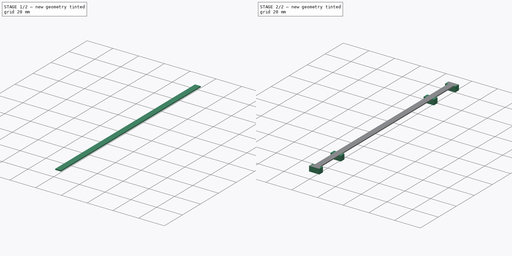
[diagram: build sequence overview — one tinted view per stage of 2, left to right]
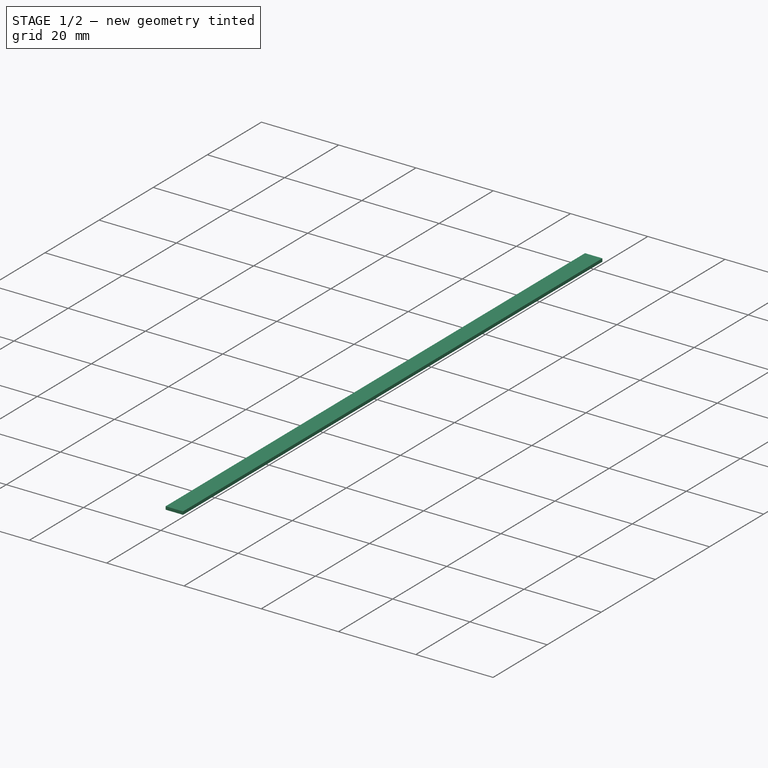
[diagram: stage 1 of 2 — iso view after this stage's code; geometry added in this stage tinted green]
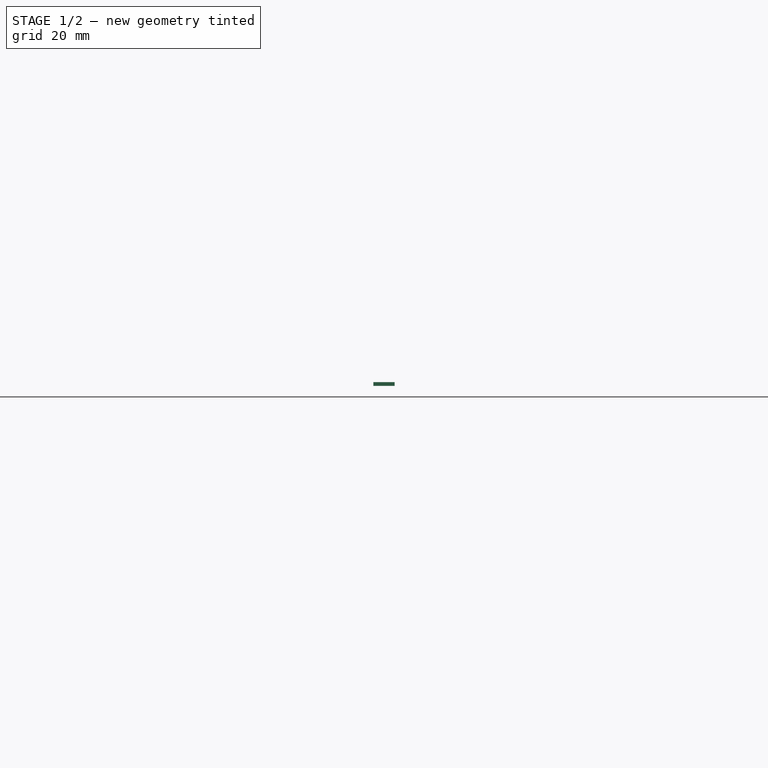
[diagram: stage 1 of 2 — front view after this stage's code; geometry added in this stage tinted green]
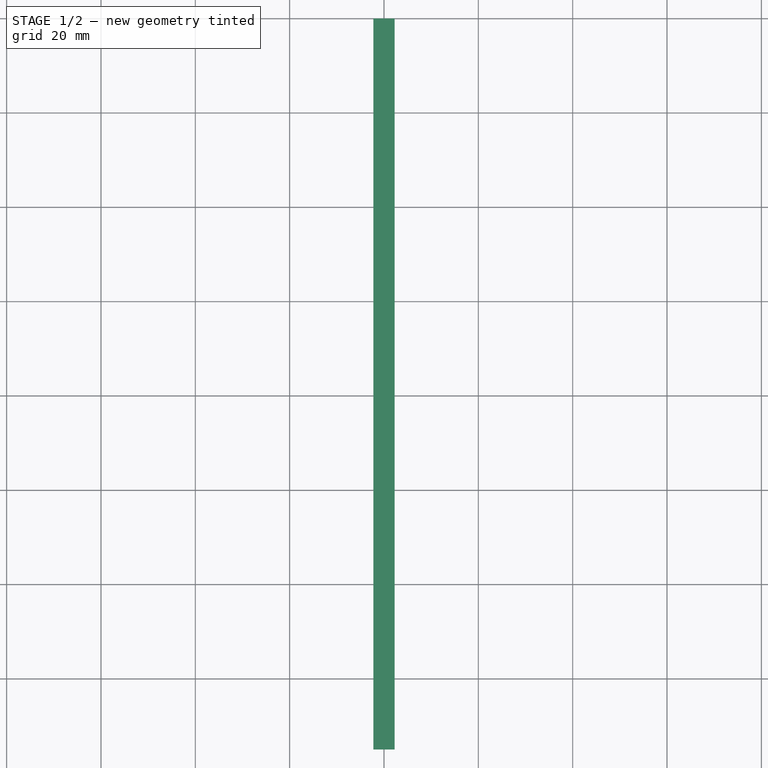
[diagram: stage 1 of 2 — top view after this stage's code; geometry added in this stage tinted green]
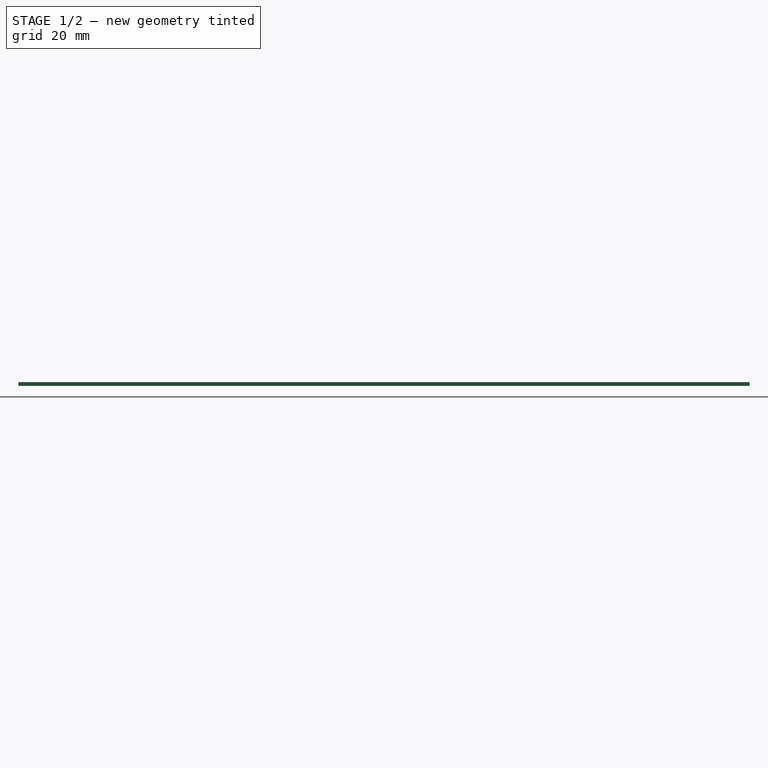
[diagram: stage 1 of 2 — right view after this stage's code; geometry added in this stage tinted green]
FCSTD DOCUMENT  (FreeCAD 1.1R39747 (Git))
Label: защёлка
License: All rights reserved
LicenseURL: https://en.wikipedia.org/wiki/All_rights_reserved
objects: Sketcher::SketchObject×2, PartDesign::Pad×2, App::Point×1, PartDesign::Body×1
note: 11 computed .brp shape members not serialized (recipe doc carries the construction recipe); baked Part::Feature solids carry a one-line shape summary decoded from their .brp

FEATURE [App::Point] Origin001
  Role = Origin
FEATURE [Sketcher::SketchObject] Sketch
  ArcFitTolerance = 1e-06
  AttachmentSupport = -> [XZ_Plane]
  ExternalTypes = [0]
  FullyConstrained = true
  MakeInternals = false
  MapMode = 5
  Placement = pos=(0,0,0) rot=(1,0,0;1.5708rad)
  sketch-geometry (4):
    g0: LineSegment StartX=-2.25 StartY=0.4 StartZ=0 EndX=-2.25 EndY=-0.4 EndZ=0
    g1: LineSegment StartX=-2.25 StartY=-0.4 StartZ=0 EndX=2.25 EndY=-0.4 EndZ=0
    g2: LineSegment StartX=2.25 StartY=-0.4 StartZ=0 EndX=2.25 EndY=0.4 EndZ=0
    g3: LineSegment StartX=2.25 StartY=0.4 StartZ=0 EndX=-2.25 EndY=0.4 EndZ=0
  constraints (11):
    c: Coincident(g0,g1)
    c: Coincident(g1,g2)
    c: Coincident(g2,g3)
    c: Coincident(g3,g0)
    c: Vertical(g0)
    c: Vertical(g2)
    c: Horizontal(g1)
    c: Horizontal(g3)
    c: DistanceX(g3,g3) = 4.5
    c: DistanceY(g2,g2) = 0.8
    c: Symmetric(g0,g2,g-1)
FEATURE [PartDesign::Pad] Pad
  Direction = (0,-1,2e-16)
  Length = 155
  Length2 = 10
  Placement = pos=(0,0,0) rot=(1,0,0;1.5708rad)
  Profile = -> Sketch
  ReferenceAxis = -> Sketch [N_Axis]
  Refine = true
  Suppressed = false
  Type = 0
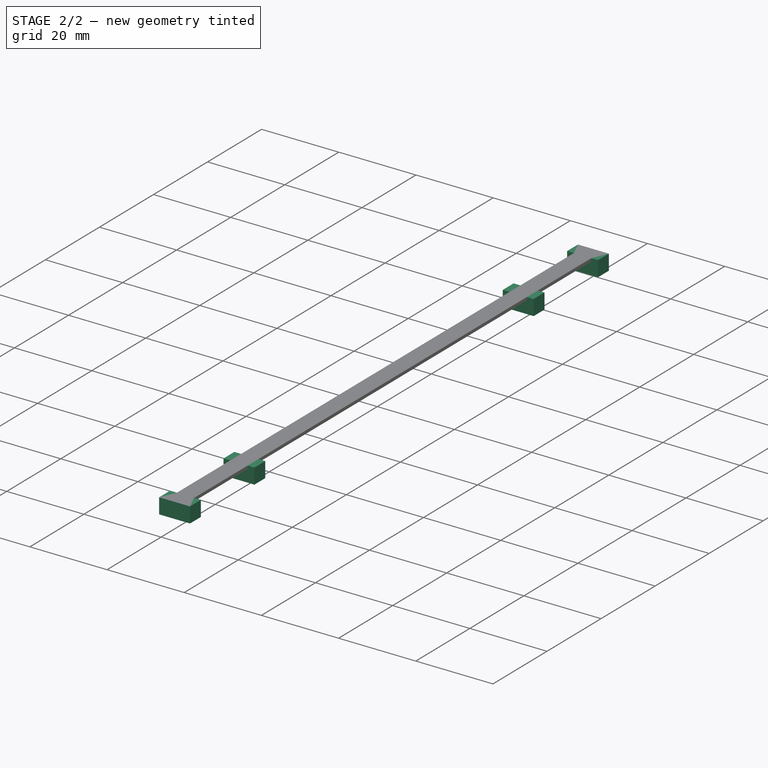
[diagram: stage 2 of 2 — iso view after this stage's code; geometry added in this stage tinted green]
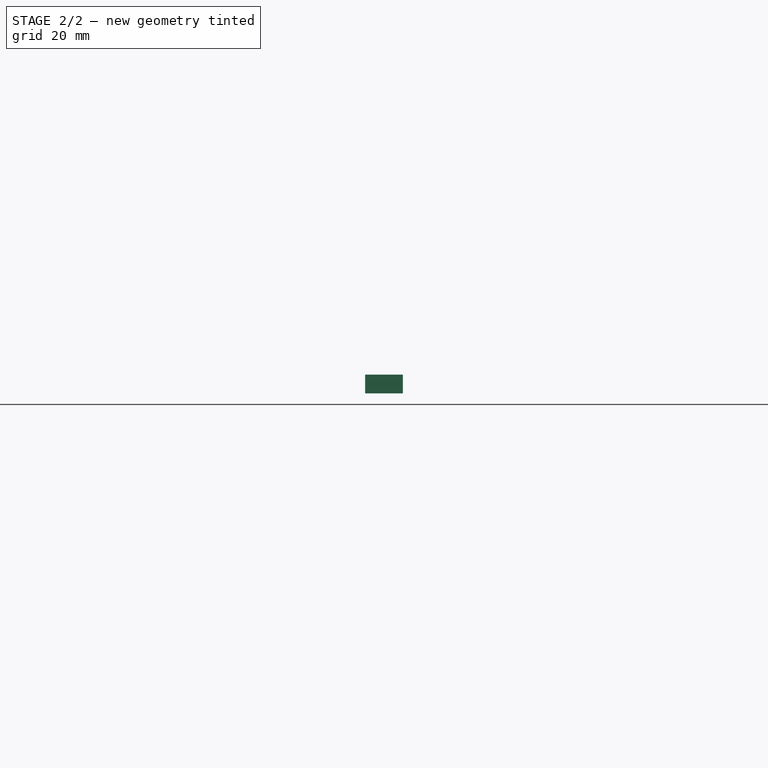
[diagram: stage 2 of 2 — front view after this stage's code; geometry added in this stage tinted green]
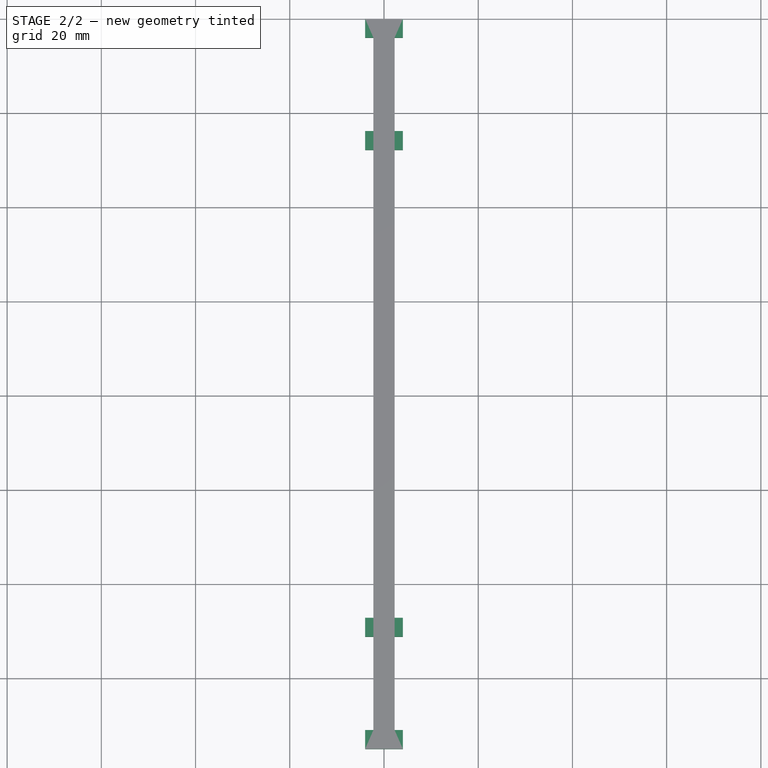
[diagram: stage 2 of 2 — top view after this stage's code; geometry added in this stage tinted green]
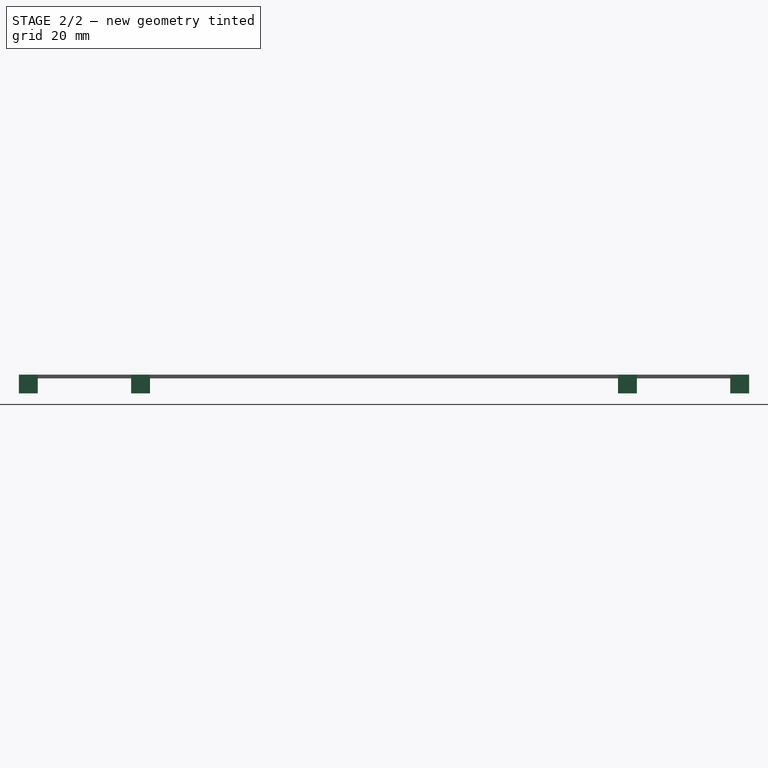
[diagram: stage 2 of 2 — right view after this stage's code; geometry added in this stage tinted green]
FEATURE [Sketcher::SketchObject] Sketch002
  ArcFitTolerance = 1e-06
  AttachmentSupport = -> [Pad]
  ExternalGeometry = -> [Pad]
  ExternalTypes = [0]
  FullyConstrained = true
  MakeInternals = false
  MapMode = 5
  Placement = pos=(0,1e-16,0.4) rot=(0,0,1;3.14159rad)
  sketch-geometry (26):
    g0: LineSegment [constr] StartX=2.25 StartY=155 StartZ=0 EndX=2.25 EndY=129.167 EndZ=0
    g1: LineSegment [constr] StartX=2.25 StartY=129.167 StartZ=0 EndX=2.25 EndY=103.333 EndZ=0
    g2: LineSegment [constr] StartX=2.25 StartY=103.333 StartZ=0 EndX=2.25 EndY=77.5 EndZ=0
    g3: LineSegment [constr] StartX=2.25 StartY=77.5 StartZ=0 EndX=2.25 EndY=51.6667 EndZ=0
    g4: LineSegment [constr] StartX=2.25 StartY=51.6667 StartZ=0 EndX=2.25 EndY=25.8333 EndZ=0
    g5: LineSegment [constr] StartX=2.25 StartY=25.8333 StartZ=0 EndX=2.25 EndY=0 EndZ=0
    g6: LineSegment StartX=-4 StartY=155 StartZ=0 EndX=-4 EndY=151 EndZ=0
    g7: LineSegment StartX=-4 StartY=151 StartZ=0 EndX=4 EndY=151 EndZ=0
    g8: LineSegment StartX=4 StartY=151 StartZ=0 EndX=4 EndY=155 EndZ=0
    g9: LineSegment StartX=4 StartY=155 StartZ=0 EndX=-4 EndY=155 EndZ=0
    g10: LineSegment StartX=-4 StartY=131.167 StartZ=0 EndX=-4 EndY=127.167 EndZ=0
    g11: LineSegment StartX=-4 StartY=127.167 StartZ=0 EndX=4 EndY=127.167 EndZ=0
    g12: LineSegment StartX=4 StartY=127.167 StartZ=0 EndX=4 EndY=131.167 EndZ=0
    g13: LineSegment StartX=4 StartY=131.167 StartZ=0 EndX=-4 EndY=131.167 EndZ=0
    g14: LineSegment StartX=-4 StartY=27.8333 StartZ=0 EndX=-4 EndY=23.8333 EndZ=0
    g15: LineSegment StartX=-4 StartY=23.8333 StartZ=0 EndX=4 EndY=23.8333 EndZ=0
    g16: LineSegment StartX=4 StartY=23.8333 StartZ=0 EndX=4 EndY=27.8333 EndZ=0
    g17: LineSegment StartX=4 StartY=27.8333 StartZ=0 EndX=-4 EndY=27.8333 EndZ=0
    g18: LineSegment StartX=-4 StartY=4 StartZ=0 EndX=-4 EndY=0 EndZ=0
    g19: LineSegment StartX=-4 StartY=0 StartZ=0 EndX=4 EndY=0 EndZ=0
    g20: LineSegment StartX=4 StartY=0 StartZ=0 EndX=4 EndY=4 EndZ=0
    g21: LineSegment StartX=4 StartY=4 StartZ=0 EndX=-4 EndY=4 EndZ=0
    g22: LineSegment [constr] StartX=2.25 StartY=25.8333 StartZ=0 EndX=2.25 EndY=27.8333 EndZ=0
    g23: LineSegment [constr] StartX=2.25 StartY=25.8333 StartZ=0 EndX=2.25 EndY=23.8333 EndZ=0
    g24: LineSegment [constr] StartX=2.25 StartY=129.167 StartZ=0 EndX=2.25 EndY=131.167 EndZ=0
    g25: LineSegment [constr] StartX=2.25 StartY=129.167 StartZ=0 EndX=2.25 EndY=127.167 EndZ=0
  constraints (73):
    c: Coincident(g-3,g0)
    c: Coincident(g0,g1)
    c: Coincident(g1,g2)
    c: Vertical(g2)
    c: Coincident(g2,g3)
    c: Coincident(g3,g4)
    c: Coincident(g4,g5)
    c: Equal(g0,g1)
    c: Equal(g1,g2)
    c: Equal(g2,g3)
    c: Equal(g3,g4)
    c: Equal(g4,g5)
    c: Coincident(g5,g-3)
    c: Vertical(g5)
    c: Vertical(g4)
    c: Vertical(g3)
    c: Vertical(g1)
    c: Coincident(g6,g7)
    c: Coincident(g7,g8)
    c: Coincident(g8,g9)
    c: Coincident(g9,g6)
    c: Vertical(g6)
    c: Vertical(g8)
    c: Horizontal(g7)
    c: Coincident(g10,g11)
    c: Coincident(g11,g12)
    c: Coincident(g12,g13)
    c: Coincident(g13,g10)
    c: Vertical(g10)
    c: Vertical(g12)
    c: Horizontal(g11)
    c: Coincident(g14,g15)
    c: Coincident(g15,g16)
    c: Coincident(g16,g17)
    c: Coincident(g17,g14)
    c: Vertical(g14)
    c: Vertical(g16)
    c: Horizontal(g15)
    c: Coincident(g18,g19)
    c: Coincident(g19,g20)
    c: Coincident(g20,g21)
    c: Coincident(g21,g18)
    c: Vertical(g18)
    c: Vertical(g20)
    c: Horizontal(g19)
    c: PointOnObject(g5,g19)
    c: Symmetric(g18,g20,g-2)
    c: Symmetric(g14,g16,g-2)
    c: Coincident(g4,g22)
    c: PointOnObject(g22,g17)
    c: Coincident(g4,g23)
    c: PointOnObject(g23,g15)
    c: Equal(g23,g22)
    c: Equal(g21,g17)
    c: Equal(g17,g13)
    c: Coincident(g0,g24)
    c: PointOnObject(g24,g13)
    c: Coincident(g0,g25)
    c: PointOnObject(g25,g11)
    c: Equal(g25,g24)
    c: Symmetric(g10,g12,g-2)
    c: Equal(g9,g13)
    c: PointOnObject(g0,g9)
    c: Equal(g20,g16)
    c: Equal(g16,g12)
    c: Equal(g12,g8)
    c: DistanceX(g19,g19) = 8
    c: DistanceY(g20,g20) = 4
    c: Vertical(g23)
    c: Vertical(g22)
    c: Vertical(g25)
    c: Vertical(g24)
    c: Symmetric(g6,g8,g-2)
FEATURE [PartDesign::Pad] Pad001
  BaseFeature = -> Pad
  Direction = (0,0,1)
  Length = 4
  Length2 = 10
  Placement = pos=(0,0,0) rot=(1,0,0;1.5708rad)
  Profile = -> Sketch002
  ReferenceAxis = -> Sketch002 [N_Axis]
  Refine = true
  Reversed = true
  Suppressed = false
  Type = 0
FEATURE [PartDesign::Body] Body  label="Тело"
  AllowCompound = false
  Group = -> [Sketch,Pad,Sketch002,Pad001]
  Origin = -> Origin
  Tip = -> Pad001
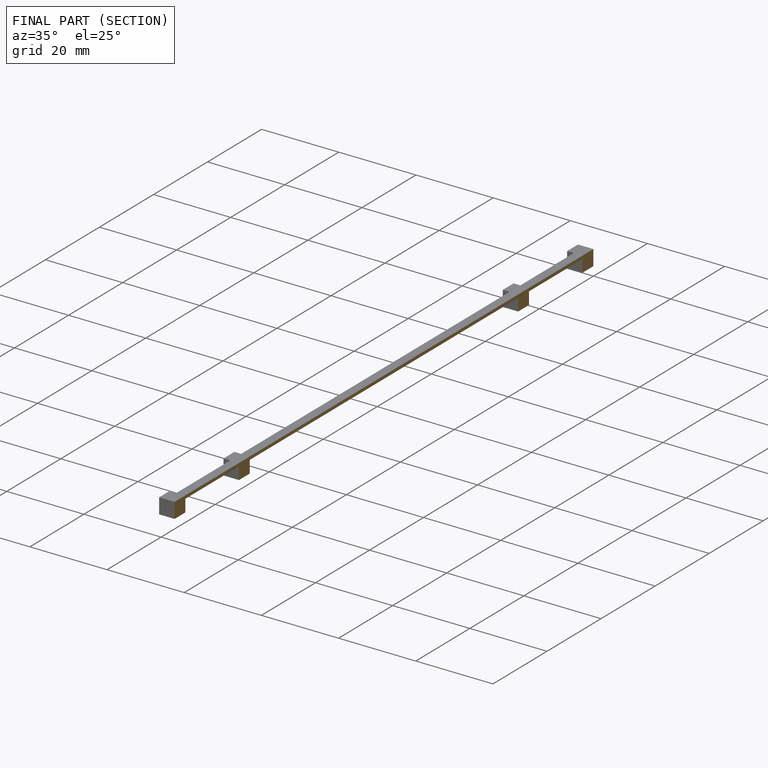
[diagram: finished part — half-section view (interior)]
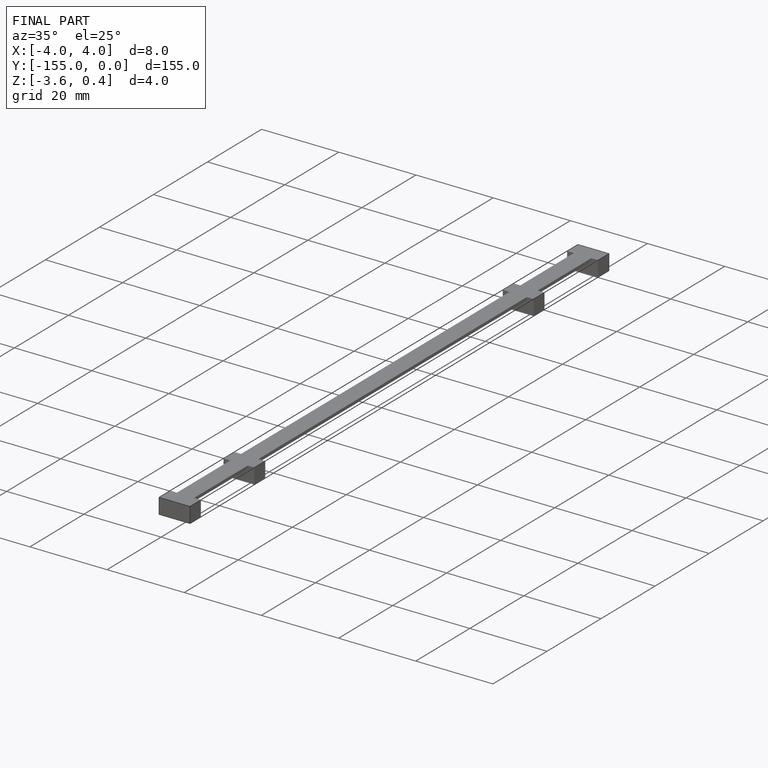
[diagram: finished part — iso view with bounding-box wireframe]
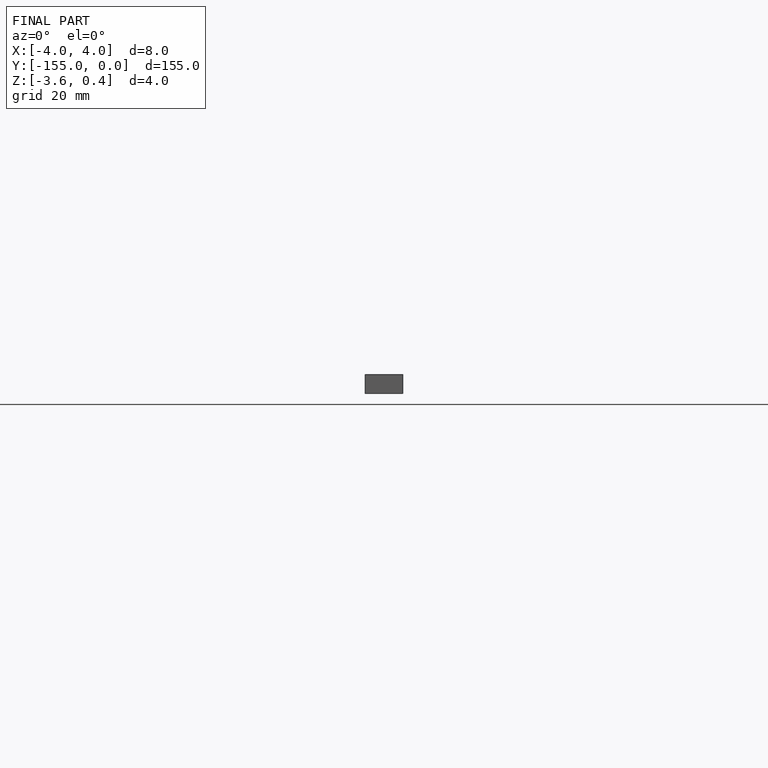
[diagram: finished part — front view with bounding-box wireframe]
